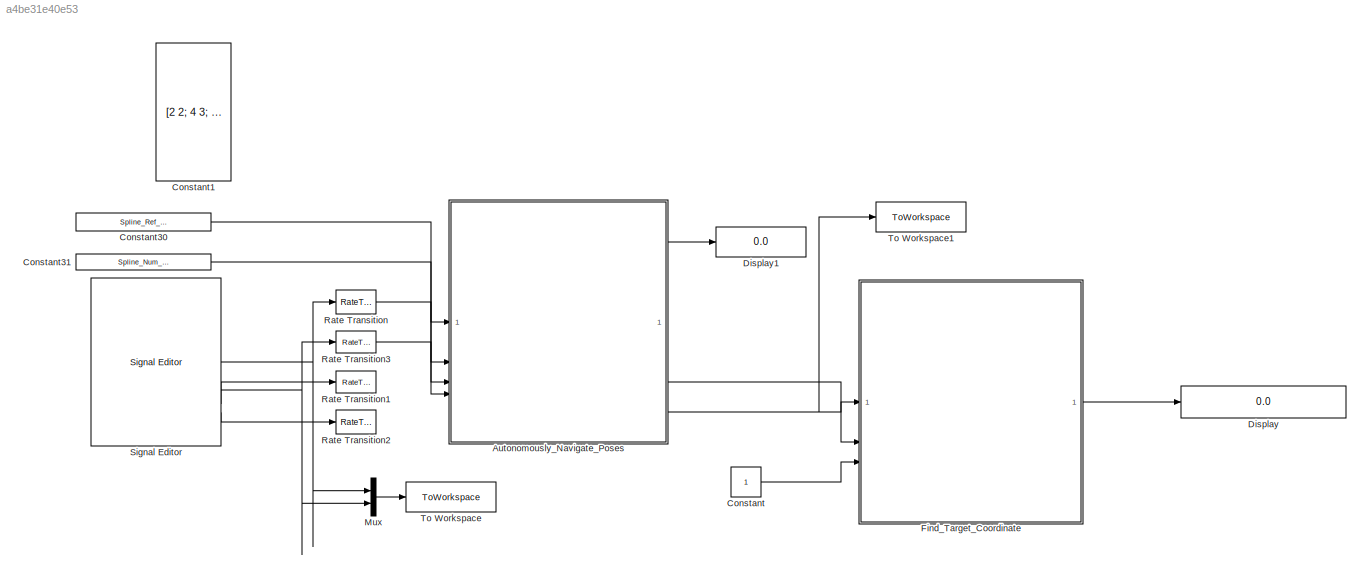
MODEL slx_a4be31e40e53
KIND model
CONFIG AbsTol = auto
CONFIG EnableMultiTasking = off
CONFIG FixedStep = 0.02
CONFIG MaxStep = auto
CONFIG MinStep = auto
CONFIG RelTol = 1e-3
CONFIG SampleTimeConstraint = Unconstrained
CONFIG SolverName = FixedStepDiscrete
CONFIG StartTime = 0.0
CONFIG StopFcn = Catmull_Rom_Plotting
CONFIG StopTime = 3.999
BLOCK [SubSystem] Autonomously_Navigate_Poses
  ReferencedSubsystem = Autonomously_Navigate_Poses
BLOCK [Constant] Constant
BLOCK [Constant] Constant1
  Commented = on
  Value = [2 2; 4 3; 7 2; 8 0; 10 -2; 12 0; 15 -1; 16 -3; 13 -4; 13 -1]
BLOCK [Constant] Constant30
  Value = Spline_Ref_Poses_auto
BLOCK [Constant] Constant31
  OutDataTypeStr = double
  Value = Spline_Num_Poses_auto
BLOCK [Display] Display
  Decimation = 1
BLOCK [Display] Display1
  Decimation = 1
BLOCK [SubSystem] Find_Target_Coordinate
  ReferencedSubsystem = Find_Target_Position_Velocity_Heading
BLOCK [Mux] Mux
  DisplayOption = bar
  Inputs = 2
BLOCK [RateTransition] Rate Transition
  OutPortSampleTime = t_sample
BLOCK [RateTransition] Rate Transition1
  OutPortSampleTime = t_sample
BLOCK [RateTransition] Rate Transition2
  OutPortSampleTime = t_sample
BLOCK [RateTransition] Rate Transition3
  OutPortSampleTime = t_sample
BLOCK [Reference] Signal Editor  REF=SignalEditorBlockLib/Signal Editor
  LibrarySourceBlock = simulink/Sources/Signal Editor
  SourceBlock = SignalEditorBlockLib/Signal Editor
  SourceType = SignalEditor
  UserDataPersistent = on
BLOCK [ToWorkspace] To Workspace
  FixptAsFi = on
  MaxDataPoints = inf
  SampleTime = -1
  Save2DSignal = 2-D array (concatenate along first dimension)
  VariableName = Robot_Pose
BLOCK [ToWorkspace] To Workspace1
  FixptAsFi = on
  MaxDataPoints = inf
  SampleTime = 20
  SaveFormat = Structure
  VariableName = ChainSampling
LINE Autonomously_Navigate_Poses:1 -> Display1:1
NET Autonomously_Navigate_Poses:2 -> Find_Target_Coordinate:1, To Workspace1:1
LINE Autonomously_Navigate_Poses:3 -> Find_Target_Coordinate:2
LINE Constant30:1 -> Autonomously_Navigate_Poses:1
LINE Constant31:1 -> Autonomously_Navigate_Poses:2
LINE Constant:1 -> Find_Target_Coordinate:3
LINE Find_Target_Coordinate:1 -> Display:1
LINE Mux:1 -> To Workspace:1
LINE Rate Transition3:1 -> Autonomously_Navigate_Poses:4
LINE Rate Transition:1 -> Autonomously_Navigate_Poses:3
NET Signal Editor:1 -> Mux:1, Rate Transition:1
NET Signal Editor:2 -> Mux:2, Rate Transition3:1
LINE Signal Editor:3 -> Rate Transition1:1
LINE Signal Editor:4 -> Rate Transition2:1
note: NET lines group one-source signal fan-out (src -> all destinations, sorted); 1:1 wires keep LINE
